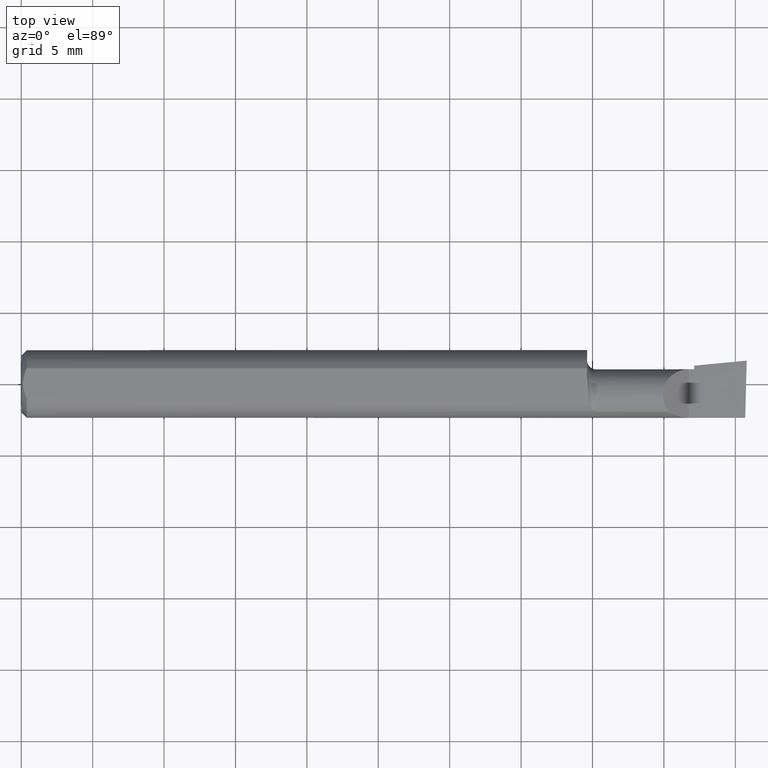
[diagram: clean part render]
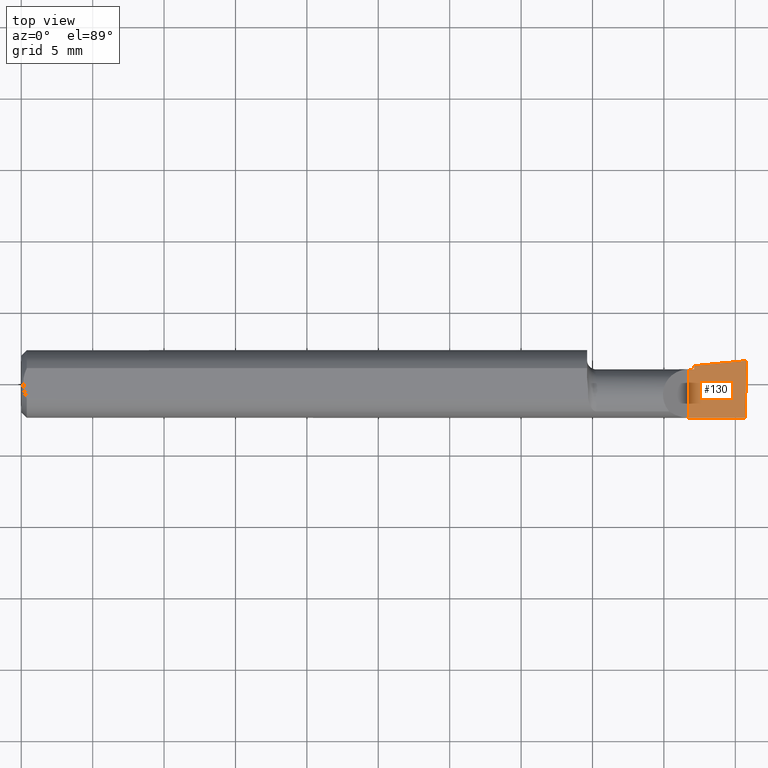
[diagram: same view with one face highlighted and labeled with its STEP entity id]
A machine part, top view. The second image highlights one B-rep face of the part: STEP entity #130.
In plain terms, the highlighted planar face has unit normal (-0, 0, -1).
Its self-contained STEP definition (entity closure, byte-faithful):
#11 = VERTEX_POINT ( 'NONE', #61 ) ;
#20 = VERTEX_POINT ( 'NONE', #417 ) ;
#23 = CARTESIAN_POINT ( 'NONE',  ( 2.000000000000003109, 0.06440000000001327995, 4.265097680108330883E-14 ) ) ;
#40 = ORIENTED_EDGE ( 'NONE', *, *, #52, .T. ) ;
#49 = LINE ( 'NONE', #63, #522 ) ;
#52 = EDGE_CURVE ( 'NONE', #364, #545, #431, .T. ) ;
#60 = DIRECTION ( 'NONE',  ( -1.000000000000000000, 0.0000000000000000000, 5.493159289247764363E-16 ) ) ;
#61 = CARTESIAN_POINT ( 'NONE',  ( 1.840000000000000080, -0.09360000000000005815, 1.959434878635762025E-17 ) ) ;
#63 = CARTESIAN_POINT ( 'NONE',  ( 5.659797890829555466E-31, -0.09359999999999998876, 1.030335658007946046E-15 ) ) ;
#69 = CARTESIAN_POINT ( 'NONE',  ( -3.026375355475531123E-19, 0.04039999999999997066, 1.030335658007946046E-15 ) ) ;
#100 = DIRECTION ( 'NONE',  ( -4.268512490100411279E-18, 1.000000000000000000, 2.344761903626518103E-33 ) ) ;
#101 = VECTOR ( 'NONE', #100, 39.37007874015748143 ) ;
#112 = ORIENTED_EDGE ( 'NONE', *, *, #471, .F. ) ;
#113 = EDGE_CURVE ( 'NONE', #505, #253, #281, .T. ) ;
#130 = ADVANCED_FACE ( 'NONE', ( #449 ), #519, .F. ) ;
#138 = DIRECTION ( 'NONE',  ( -1.000000000000000000, -0.0000000000000000000, -0.0000000000000000000 ) ) ;
#143 = CARTESIAN_POINT ( 'NONE',  ( 1.995862624392067852, -0.09360000000000009979, -6.605666309584449409E-17 ) ) ;
#253 = VERTEX_POINT ( 'NONE', #306 ) ;
#259 = EDGE_CURVE ( 'NONE', #11, #20, #467, .T. ) ;
#260 = CARTESIAN_POINT ( 'NONE',  ( 1.840000000000000080, -0.2500000000000000555, 1.959434878635762025E-17 ) ) ;
#281 = LINE ( 'NONE', #290, #101 ) ;
#290 = CARTESIAN_POINT ( 'NONE',  ( 1.854999999999999982, -0.2500000000000000555, 1.135460985248596835E-17 ) ) ;
#306 = CARTESIAN_POINT ( 'NONE',  ( 1.854999999999999982, 0.05043808801135914871, 1.030845766359249298E-15 ) ) ;
#318 = ORIENTED_EDGE ( 'NONE', *, *, #259, .F. ) ;
#328 = CARTESIAN_POINT ( 'NONE',  ( 1.991772787678610435, -0.2497845628634191573, -6.377686106282116365E-17 ) ) ;
#343 = CARTESIAN_POINT ( 'NONE',  ( 1.854999999999999982, 0.04039999999999999841, 1.030335658007946243E-15 ) ) ;
#344 = EDGE_CURVE ( 'NONE', #364, #11, #49, .T. ) ;
#350 = CARTESIAN_POINT ( 'NONE',  ( 1.014425817094896765, -0.03050000000000000280, 4.730953979651876041E-16 ) ) ;
#364 = VERTEX_POINT ( 'NONE', #143 ) ;
#382 = CARTESIAN_POINT ( 'NONE',  ( 2.000000000000000000, -0.2500000000000000555, -6.829619984160658046E-17 ) ) ;
#386 = VECTOR ( 'NONE', #478, 39.37007874015748143 ) ;
#394 = DIRECTION ( 'NONE',  ( 0.9953961983671787417, 0.09584575252022466130, -5.467869873542577569E-16 ) ) ;
#410 = DIRECTION ( 'NONE',  ( 0.02617694830786037805, 0.9996573249755575929, -1.459184416195409269E-17 ) ) ;
#417 = CARTESIAN_POINT ( 'NONE',  ( 1.840000000000000080, 0.04039999999999989433, 1.959434878635762025E-17 ) ) ;
#425 = DIRECTION ( 'NONE',  ( -5.493159289247764363E-16, 0.0000000000000000000, -1.000000000000000000 ) ) ;
#431 = LINE ( 'NONE', #328, #544 ) ;
#437 = ORIENTED_EDGE ( 'NONE', *, *, #113, .F. ) ;
#449 = FACE_OUTER_BOUND ( 'NONE', #599, .T. ) ;
#466 = AXIS2_PLACEMENT_3D ( 'NONE', #382, #425, #60 ) ;
#467 = LINE ( 'NONE', #260, #479 ) ;
#471 = EDGE_CURVE ( 'NONE', #20, #505, #530, .T. ) ;
#472 = ORIENTED_EDGE ( 'NONE', *, *, #344, .F. ) ;
#478 = DIRECTION ( 'NONE',  ( 1.000000000000000000, 4.268512490100411279E-18, 0.0000000000000000000 ) ) ;
#479 = VECTOR ( 'NONE', #594, 39.37007874015748143 ) ;
#499 = EDGE_CURVE ( 'NONE', #253, #545, #521, .T. ) ;
#504 = ORIENTED_EDGE ( 'NONE', *, *, #499, .F. ) ;
#505 = VERTEX_POINT ( 'NONE', #343 ) ;
#507 = VECTOR ( 'NONE', #394, 39.37007874015748143 ) ;
#519 = PLANE ( 'NONE',  #466 ) ;
#521 = LINE ( 'NONE', #350, #507 ) ;
#522 = VECTOR ( 'NONE', #138, 39.37007874015748143 ) ;
#530 = LINE ( 'NONE', #69, #386 ) ;
#544 = VECTOR ( 'NONE', #410, 39.37007874015748854 ) ;
#545 = VERTEX_POINT ( 'NONE', #23 ) ;
#594 = DIRECTION ( 'NONE',  ( -0.0000000000000000000, 1.000000000000000000, -0.0000000000000000000 ) ) ;
#599 = EDGE_LOOP ( 'NONE', ( #472, #40, #504, #437, #112, #318 ) ) ;